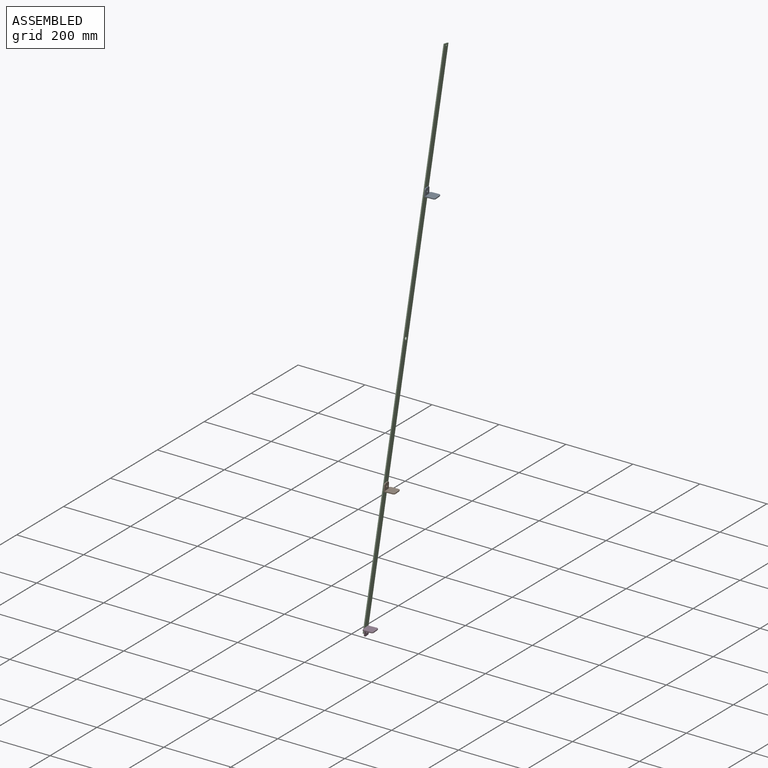
[diagram: assembled view]
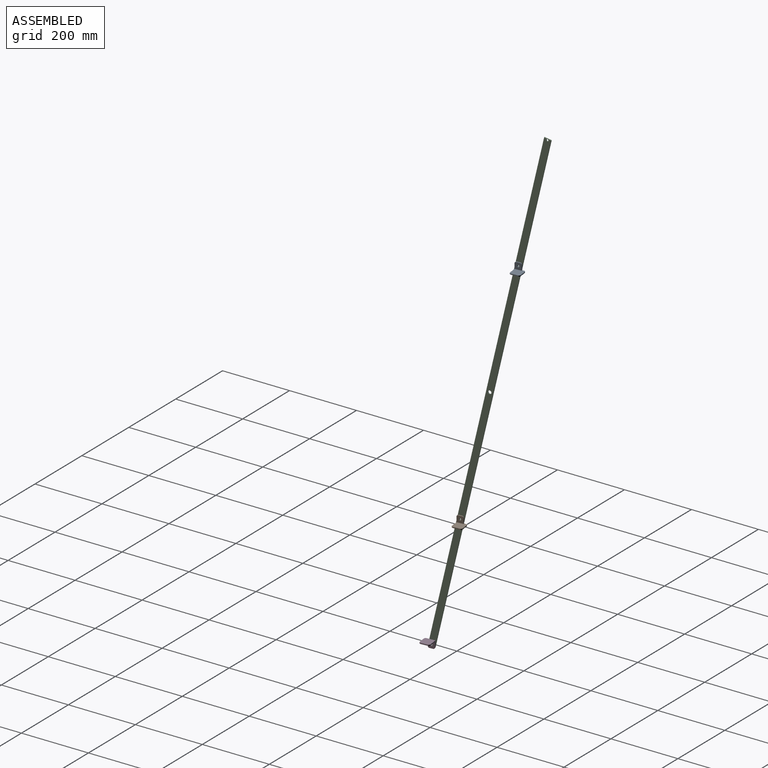
[diagram: assembled view, second angle]
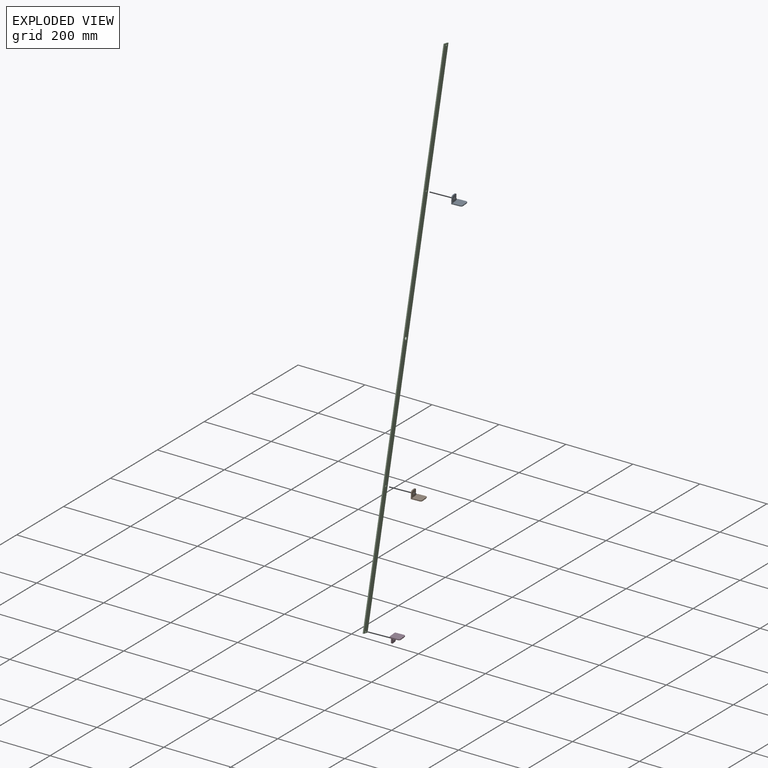
[diagram: exploded view]
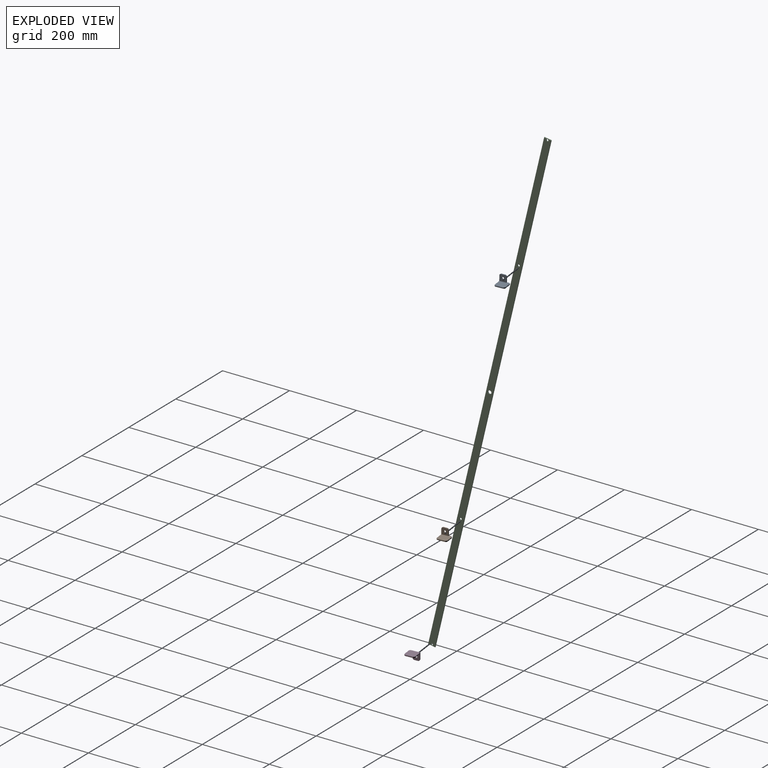
[diagram: exploded view, second angle]
ASSEMBLY  parts=4 mates=3
PART A: 15 faces, bbox 30x30x23 mm
  f0: plane 25x18mm, normal (0,-1,0), area 120mm2, adj f3,f4,f7,f8,f12,f13
  f1: plane 10x3mm, normal (0,0,-1), area 30mm2, adj f3,f4,f13,f14
  f2: plane 15x3mm, normal (0,1,0), area 45mm2, adj f3,f4,f8,f14
  f3: plane 25x23mm, normal (1,0,0), area 436mm2, adj f0,f1,f2,f7,f8,f9,f10,f13
  f4: plane 20x20mm, normal (-1,0,0), area 361mm2, adj f0,f1,f2,f8,f9,f13,f14
  f5: plane 20x3mm, normal (0,1,0), area 60mm2, adj f7,f8,f10,f11
  f6: plane 20x3mm, normal (-1,0,0), area 60mm2, adj f7,f8,f11,f12
  f7: plane 30x30mm, normal (0,0,1), area 883.9mm2, adj f0,f3,f5,f6,f10,f11,f12
  f8: plane 30x30mm, normal (0,0,-1), area 823.9mm2, adj f0,f2,f3,f4,f5,f6,f10,f11
  f9: cylinder r=3mm len=6mm, axis (1,0,0), area 56.5mm2, adj f3,f4
  f10: cylinder r=5mm len=5mm, axis (0,0,-1), area 23.6mm2, adj f3,f5,f7,f8
  f11: cylinder r=5mm len=5mm, axis (0,0,-1), area 23.6mm2, adj f5,f6,f7,f8
  f12: cylinder r=5mm len=5mm, axis (0,0,-1), area 23.6mm2, adj f0,f6,f7,f8
  f13: cylinder r=5mm len=5mm, axis (-1,0,0), area 23.6mm2, adj f0,f1,f3,f4
  f14: cylinder r=5mm len=5mm, axis (-1,0,0), area 23.6mm2, adj f1,f2,f3,f4
PART B: same geometry as A
PART C: 11 faces, bbox 3x1500x20 mm
  f0: plane 1500x3mm, normal (0,0,1), area 4500mm2, adj f1,f6,f9,f10
  f1: plane 20x3mm, normal (0,-1,0), area 60mm2, adj f0,f2,f9,f10
  f2: plane 1500x3mm, normal (0,0,-1), area 4500mm2, adj f1,f6,f9,f10
  f3: cylinder r=3mm len=6mm, axis (-1,0,0), area 56.5mm2, adj f9,f10
  f4: cylinder r=5mm len=10mm, axis (-1,0,0), area 94.2mm2, adj f9,f10
  f5: cylinder r=3mm len=6mm, axis (-1,0,0), area 56.5mm2, adj f9,f10
  f6: plane 20x3mm, normal (0,1,0), area 60mm2, adj f0,f2,f9,f10
  f7: cylinder r=3mm len=6mm, axis (-1,0,0), area 56.5mm2, adj f9,f10
  f8: cylinder r=3mm len=6mm, axis (-1,0,0), area 56.5mm2, adj f9,f10
  f9: plane 1500x20mm, normal (1,0,0), area 29808.4mm2, adj f0,f1,f2,f3,f4,f5,f6,f7
  f10: plane 1500x20mm, normal (-1,0,0), area 29808.4mm2, adj f0,f1,f2,f3,f4,f5,f6,f7
PART D: same geometry as A
PLACE A rot(axis=(0.05,-1,0.01),178.7deg) t=(267.45,619.31,2094.27)mm
PLACE B rot(axis=(0.05,-1,0.01),178.7deg) t=(267.81,446.33,1364.49)mm
PLACE C rot(axis=(1,0.06,0.05),76.9deg) t=(259.8,378.7,987.31)mm
PLACE D rot(axis=(-0.01,-0.01,-1),174.3deg) t=(265.57,380.32,983.21)mm
MATE revolute A.f9 <-> C.f3  axis (-0.99,-0.1,0.02) through (263.26,628.8,2084.2)mm
MATE revolute B.f9 <-> C.f5  axis (-0.99,-0.1,0.02) through (263.62,455.81,1354.42)mm
MATE revolute D.f9 <-> C.f7  axis (-0.99,-0.1,0.02) through (263.8,370.24,993.42)mm
